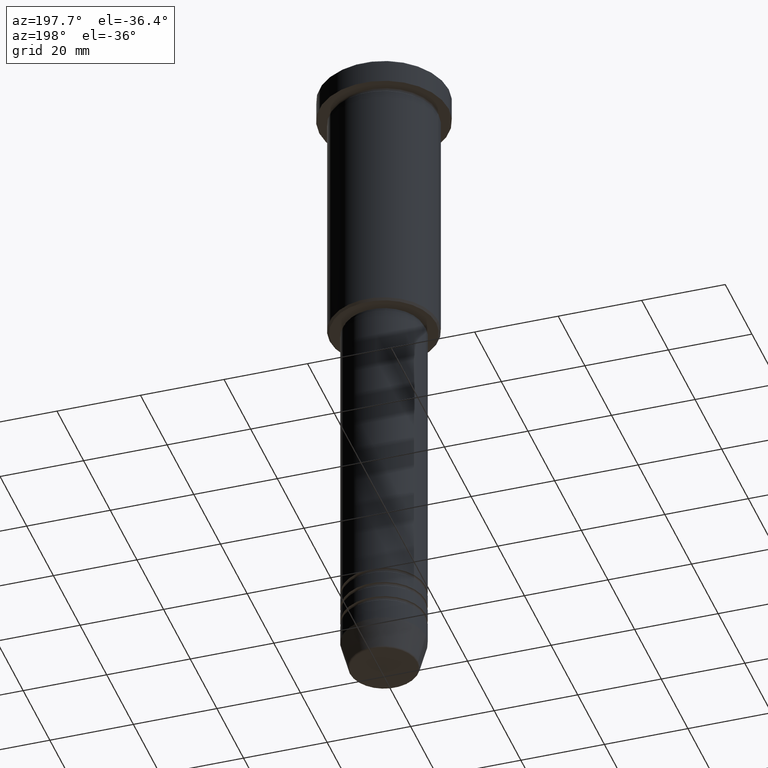
[diagram: clean part render]
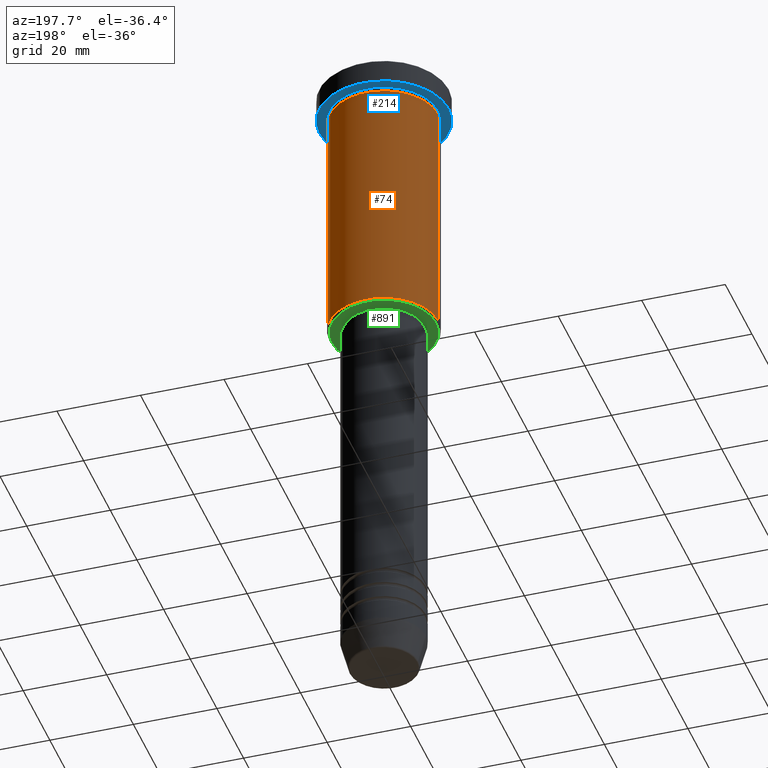
[diagram: same view with three faces highlighted in distinct colors, each labeled with its STEP entity id]
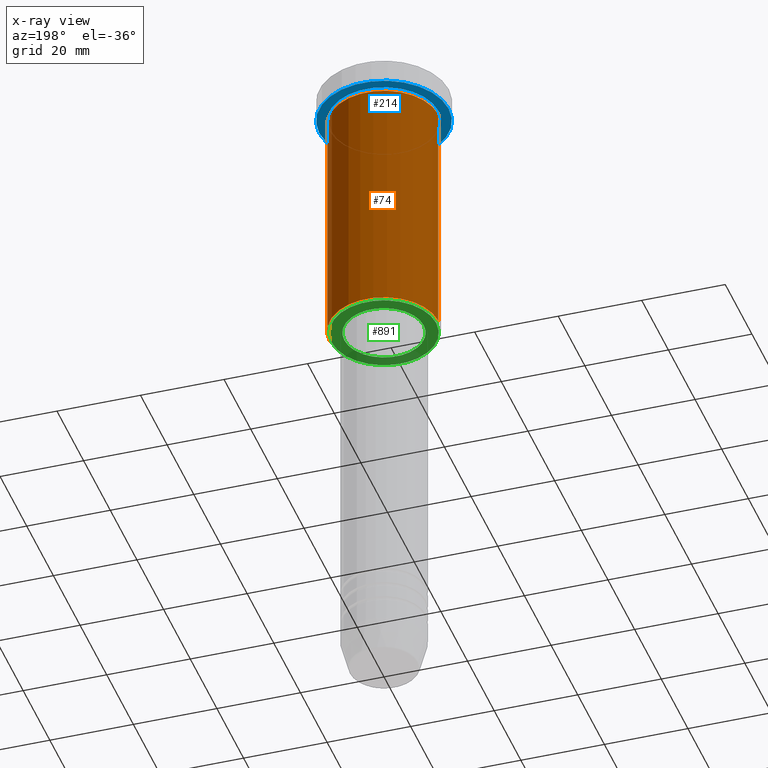
[diagram: x-ray of the same camera — body ghosted, the three highlighted faces saturated]
A machine part, auxiliary view with three faces highlighted in distinct colors.
The next image is the same camera in x-ray (body ghosted, the three faces saturated) — at least one of them is partly hidden behind the body in this view.
Their STEP definitions:

[orange] entity #74 — the highlighted cylindrical surface (partial cylindrical patch) has radius 13 mm, axis along (-0, -0, 1).
#5 = CIRCLE ( 'NONE', #540, 13.00000000000000178 ) ;
#24 = LINE ( 'NONE', #390, #257 ) ;
#51 = ORIENTED_EDGE ( 'NONE', *, *, #596, .F. ) ;
#74 = ADVANCED_FACE ( 'NONE', ( #314 ), #220, .T. ) ;
#105 = VERTEX_POINT ( 'NONE', #408 ) ;
#129 = DIRECTION ( 'NONE',  ( 1.000000000000000000, 0.000000000000000000, 0.000000000000000000 ) ) ;
#180 = ORIENTED_EDGE ( 'NONE', *, *, #781, .T. ) ;
#187 = CARTESIAN_POINT ( 'NONE',  ( 13.00000000000000178, 0.000000000000000000, -65.50000000000002842 ) ) ;
#220 = CYLINDRICAL_SURFACE ( 'NONE', #531, 13.00000000000000178 ) ;
#226 = CARTESIAN_POINT ( 'NONE',  ( -13.00000000000000178, 1.592040838891559293E-15, -6.999999999999995559 ) ) ;
#257 = VECTOR ( 'NONE', #755, 1000.000000000000000 ) ;
#314 = FACE_OUTER_BOUND ( 'NONE', #335, .T. ) ;
#335 = EDGE_LOOP ( 'NONE', ( #180, #1087, #420, #51 ) ) ;
#390 = CARTESIAN_POINT ( 'NONE',  ( -13.00000000000000178, 1.592040838891559293E-15, 0.000000000000000000 ) ) ;
#392 = EDGE_CURVE ( 'NONE', #742, #464, #24, .T. ) ;
#406 = CARTESIAN_POINT ( 'NONE',  ( -13.00000000000000178, 1.592040838891559293E-15, -65.50000000000002842 ) ) ;
#408 = CARTESIAN_POINT ( 'NONE',  ( 13.00000000000000178, 0.000000000000000000, -6.999999999999995559 ) ) ;
#420 = ORIENTED_EDGE ( 'NONE', *, *, #1011, .F. ) ;
#464 = VERTEX_POINT ( 'NONE', #226 ) ;
#465 = DIRECTION ( 'NONE',  ( 1.000000000000000000, 0.000000000000000000, 0.000000000000000000 ) ) ;
#502 = DIRECTION ( 'NONE',  ( -0.000000000000000000, -0.000000000000000000, 1.000000000000000000 ) ) ;
#526 = DIRECTION ( 'NONE',  ( -0.000000000000000000, -0.000000000000000000, 1.000000000000000000 ) ) ;
#531 = AXIS2_PLACEMENT_3D ( 'NONE', #595, #686, #129 ) ;
#540 = AXIS2_PLACEMENT_3D ( 'NONE', #565, #1006, #465 ) ;
#565 = CARTESIAN_POINT ( 'NONE',  ( 0.000000000000000000, 0.000000000000000000, -6.999999999999995559 ) ) ;
#585 = DIRECTION ( 'NONE',  ( -1.000000000000000000, 0.000000000000000000, 0.000000000000000000 ) ) ;
#595 = CARTESIAN_POINT ( 'NONE',  ( 0.000000000000000000, 0.000000000000000000, 0.000000000000000000 ) ) ;
#596 = EDGE_CURVE ( 'NONE', #944, #105, #798, .T. ) ;
#616 = AXIS2_PLACEMENT_3D ( 'NONE', #1049, #502, #585 ) ;
#686 = DIRECTION ( 'NONE',  ( -0.000000000000000000, -0.000000000000000000, 1.000000000000000000 ) ) ;
#742 = VERTEX_POINT ( 'NONE', #406 ) ;
#755 = DIRECTION ( 'NONE',  ( -0.000000000000000000, -0.000000000000000000, 1.000000000000000000 ) ) ;
#781 = EDGE_CURVE ( 'NONE', #944, #742, #1127, .T. ) ;
#798 = LINE ( 'NONE', #990, #1026 ) ;
#944 = VERTEX_POINT ( 'NONE', #187 ) ;
#990 = CARTESIAN_POINT ( 'NONE',  ( 13.00000000000000178, 0.000000000000000000, 0.000000000000000000 ) ) ;
#1006 = DIRECTION ( 'NONE',  ( -0.000000000000000000, -0.000000000000000000, 1.000000000000000000 ) ) ;
#1011 = EDGE_CURVE ( 'NONE', #105, #464, #5, .T. ) ;
#1026 = VECTOR ( 'NONE', #526, 1000.000000000000000 ) ;
#1049 = CARTESIAN_POINT ( 'NONE',  ( 0.000000000000000000, 0.000000000000000000, -65.50000000000002842 ) ) ;
#1087 = ORIENTED_EDGE ( 'NONE', *, *, #392, .T. ) ;
#1127 = CIRCLE ( 'NONE', #616, 13.00000000000000178 ) ;

[blue] entity #214 — the highlighted planar face has unit normal (0, 0, -1).
#32 = CIRCLE ( 'NONE', #1067, 15.50000000000000000 ) ;
#75 = CARTESIAN_POINT ( 'NONE',  ( 0.000000000000000000, 0.000000000000000000, -5.999999999999995559 ) ) ;
#80 = ORIENTED_EDGE ( 'NONE', *, *, #564, .T. ) ;
#156 = CARTESIAN_POINT ( 'NONE',  ( 15.50000000000000000, 0.000000000000000000, -5.999999999999995559 ) ) ;
#192 = CARTESIAN_POINT ( 'NONE',  ( -15.50000000000000000, 1.898202538678397557E-15, -5.999999999999995559 ) ) ;
#198 = VERTEX_POINT ( 'NONE', #156 ) ;
#214 = ADVANCED_FACE ( 'NONE', ( #445, #537 ), #629, .T. ) ;
#222 = CIRCLE ( 'NONE', #414, 13.00000000000000000 ) ;
#239 = DIRECTION ( 'NONE',  ( -0.000000000000000000, -0.000000000000000000, 1.000000000000000000 ) ) ;
#263 = EDGE_CURVE ( 'NONE', #955, #198, #431, .T. ) ;
#271 = VERTEX_POINT ( 'NONE', #463 ) ;
#298 = AXIS2_PLACEMENT_3D ( 'NONE', #527, #888, #1075 ) ;
#300 = CARTESIAN_POINT ( 'NONE',  ( 0.000000000000000000, 0.000000000000000000, -5.999999999999995559 ) ) ;
#319 = AXIS2_PLACEMENT_3D ( 'NONE', #300, #239, #327 ) ;
#327 = DIRECTION ( 'NONE',  ( -1.000000000000000000, 0.000000000000000000, 0.000000000000000000 ) ) ;
#346 = DIRECTION ( 'NONE',  ( -0.000000000000000000, -0.000000000000000000, 1.000000000000000000 ) ) ;
#380 = CARTESIAN_POINT ( 'NONE',  ( 0.000000000000000000, 0.000000000000000000, -5.999999999999995559 ) ) ;
#381 = EDGE_LOOP ( 'NONE', ( #908, #608 ) ) ;
#394 = ORIENTED_EDGE ( 'NONE', *, *, #412, .T. ) ;
#407 = DIRECTION ( 'NONE',  ( 1.000000000000000000, 0.000000000000000000, 0.000000000000000000 ) ) ;
#409 = EDGE_LOOP ( 'NONE', ( #394, #80 ) ) ;
#412 = EDGE_CURVE ( 'NONE', #581, #271, #1084, .T. ) ;
#414 = AXIS2_PLACEMENT_3D ( 'NONE', #75, #346, #439 ) ;
#431 = CIRCLE ( 'NONE', #873, 15.50000000000000000 ) ;
#439 = DIRECTION ( 'NONE',  ( -1.000000000000000000, 0.000000000000000000, 0.000000000000000000 ) ) ;
#445 = FACE_BOUND ( 'NONE', #409, .T. ) ;
#463 = CARTESIAN_POINT ( 'NONE',  ( 13.00000000000000000, 1.592040838891559095E-15, -5.999999999999994671 ) ) ;
#496 = CARTESIAN_POINT ( 'NONE',  ( 0.000000000000000000, 0.000000000000000000, -5.999999999999995559 ) ) ;
#527 = CARTESIAN_POINT ( 'NONE',  ( 0.000000000000000000, 15.50000000000000000, -5.999999999999995559 ) ) ;
#534 = EDGE_CURVE ( 'NONE', #198, #955, #32, .T. ) ;
#537 = FACE_OUTER_BOUND ( 'NONE', #381, .T. ) ;
#554 = DIRECTION ( 'NONE',  ( -0.000000000000000000, -0.000000000000000000, 1.000000000000000000 ) ) ;
#564 = EDGE_CURVE ( 'NONE', #271, #581, #222, .T. ) ;
#581 = VERTEX_POINT ( 'NONE', #714 ) ;
#608 = ORIENTED_EDGE ( 'NONE', *, *, #263, .F. ) ;
#629 = PLANE ( 'NONE',  #298 ) ;
#714 = CARTESIAN_POINT ( 'NONE',  ( -13.00000000000000000, 0.000000000000000000, -5.999999999999994671 ) ) ;
#751 = DIRECTION ( 'NONE',  ( 1.000000000000000000, 0.000000000000000000, 0.000000000000000000 ) ) ;
#858 = DIRECTION ( 'NONE',  ( -0.000000000000000000, -0.000000000000000000, 1.000000000000000000 ) ) ;
#873 = AXIS2_PLACEMENT_3D ( 'NONE', #380, #554, #751 ) ;
#888 = DIRECTION ( 'NONE',  ( 0.000000000000000000, 0.000000000000000000, -1.000000000000000000 ) ) ;
#908 = ORIENTED_EDGE ( 'NONE', *, *, #534, .F. ) ;
#955 = VERTEX_POINT ( 'NONE', #192 ) ;
#1067 = AXIS2_PLACEMENT_3D ( 'NONE', #496, #858, #407 ) ;
#1075 = DIRECTION ( 'NONE',  ( -1.000000000000000000, 0.000000000000000000, -0.000000000000000000 ) ) ;
#1084 = CIRCLE ( 'NONE', #319, 13.00000000000000000 ) ;

[green] entity #891 — the highlighted planar face has unit normal (0, 0, -1).
#11 = DIRECTION ( 'NONE',  ( 0.000000000000000000, 0.000000000000000000, -1.000000000000000000 ) ) ;
#60 = AXIS2_PLACEMENT_3D ( 'NONE', #994, #636, #450 ) ;
#65 = DIRECTION ( 'NONE',  ( 0.000000000000000000, 0.000000000000000000, -1.000000000000000000 ) ) ;
#87 = EDGE_LOOP ( 'NONE', ( #748, #904 ) ) ;
#98 = DIRECTION ( 'NONE',  ( -1.000000000000000000, 0.000000000000000000, 0.000000000000000000 ) ) ;
#118 = VERTEX_POINT ( 'NONE', #1063 ) ;
#200 = CIRCLE ( 'NONE', #614, 9.500000000000001776 ) ;
#272 = CARTESIAN_POINT ( 'NONE',  ( -12.49999999999999645, 1.561424668912875308E-15, -66.00000000000002842 ) ) ;
#276 = VERTEX_POINT ( 'NONE', #272 ) ;
#290 = DIRECTION ( 'NONE',  ( 1.000000000000000000, 0.000000000000000000, 0.000000000000000000 ) ) ;
#336 = CARTESIAN_POINT ( 'NONE',  ( 0.000000000000000000, 0.000000000000000000, -66.00000000000002842 ) ) ;
#340 = AXIS2_PLACEMENT_3D ( 'NONE', #422, #518, #881 ) ;
#362 = FACE_OUTER_BOUND ( 'NONE', #363, .T. ) ;
#363 = EDGE_LOOP ( 'NONE', ( #1178, #400 ) ) ;
#366 = DIRECTION ( 'NONE',  ( -0.000000000000000000, -0.000000000000000000, 1.000000000000000000 ) ) ;
#369 = CARTESIAN_POINT ( 'NONE',  ( 9.500000000000001776, 0.000000000000000000, -66.00000000000002842 ) ) ;
#370 = EDGE_CURVE ( 'NONE', #999, #118, #200, .T. ) ;
#400 = ORIENTED_EDGE ( 'NONE', *, *, #1017, .T. ) ;
#422 = CARTESIAN_POINT ( 'NONE',  ( 0.000000000000000000, 0.000000000000000000, -66.00000000000002842 ) ) ;
#426 = VERTEX_POINT ( 'NONE', #952 ) ;
#450 = DIRECTION ( 'NONE',  ( -1.000000000000000000, 0.000000000000000000, -0.000000000000000000 ) ) ;
#460 = CARTESIAN_POINT ( 'NONE',  ( 0.000000000000000000, 0.000000000000000000, -66.00000000000002842 ) ) ;
#478 = CIRCLE ( 'NONE', #859, 12.49999999999999645 ) ;
#514 = CIRCLE ( 'NONE', #340, 9.500000000000001776 ) ;
#518 = DIRECTION ( 'NONE',  ( -0.000000000000000000, -0.000000000000000000, 1.000000000000000000 ) ) ;
#570 = FACE_BOUND ( 'NONE', #87, .T. ) ;
#614 = AXIS2_PLACEMENT_3D ( 'NONE', #1117, #366, #290 ) ;
#631 = EDGE_CURVE ( 'NONE', #118, #999, #514, .T. ) ;
#636 = DIRECTION ( 'NONE',  ( 0.000000000000000000, 0.000000000000000000, -1.000000000000000000 ) ) ;
#748 = ORIENTED_EDGE ( 'NONE', *, *, #370, .T. ) ;
#769 = AXIS2_PLACEMENT_3D ( 'NONE', #460, #11, #98 ) ;
#848 = EDGE_CURVE ( 'NONE', #426, #276, #478, .T. ) ;
#859 = AXIS2_PLACEMENT_3D ( 'NONE', #336, #65, #967 ) ;
#881 = DIRECTION ( 'NONE',  ( 1.000000000000000000, 0.000000000000000000, 0.000000000000000000 ) ) ;
#891 = ADVANCED_FACE ( 'NONE', ( #362, #570 ), #1099, .T. ) ;
#903 = CIRCLE ( 'NONE', #769, 12.49999999999999645 ) ;
#904 = ORIENTED_EDGE ( 'NONE', *, *, #631, .T. ) ;
#952 = CARTESIAN_POINT ( 'NONE',  ( 12.49999999999999645, 0.000000000000000000, -66.00000000000002842 ) ) ;
#967 = DIRECTION ( 'NONE',  ( -1.000000000000000000, 0.000000000000000000, 0.000000000000000000 ) ) ;
#994 = CARTESIAN_POINT ( 'NONE',  ( 0.000000000000000000, 13.00000000000000000, -66.00000000000002842 ) ) ;
#999 = VERTEX_POINT ( 'NONE', #369 ) ;
#1017 = EDGE_CURVE ( 'NONE', #276, #426, #903, .T. ) ;
#1063 = CARTESIAN_POINT ( 'NONE',  ( -9.500000000000001776, 1.163414459189985682E-15, -66.00000000000002842 ) ) ;
#1099 = PLANE ( 'NONE',  #60 ) ;
#1117 = CARTESIAN_POINT ( 'NONE',  ( 0.000000000000000000, 0.000000000000000000, -66.00000000000002842 ) ) ;
#1178 = ORIENTED_EDGE ( 'NONE', *, *, #848, .T. ) ;